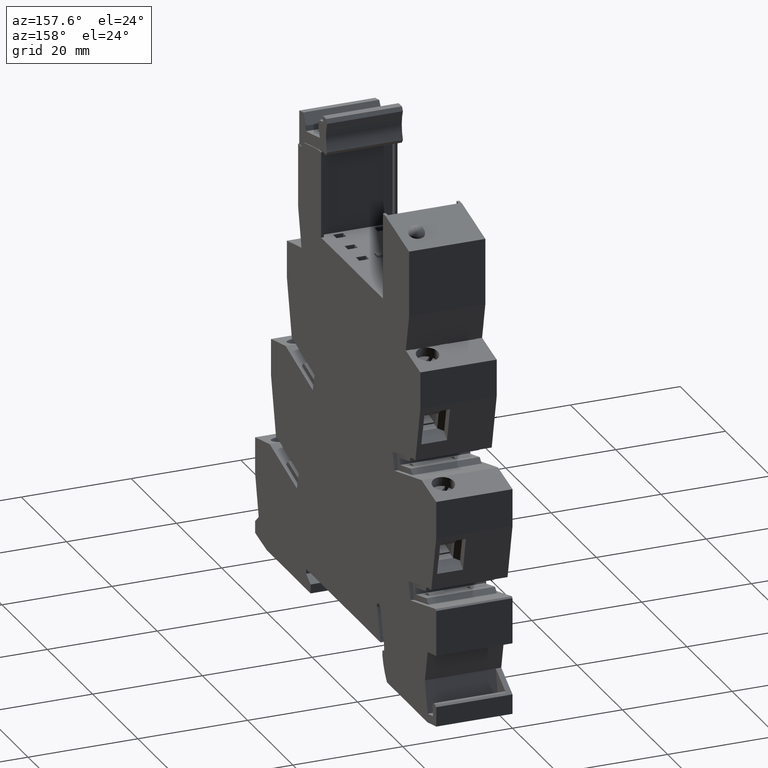
[diagram: clean part render]
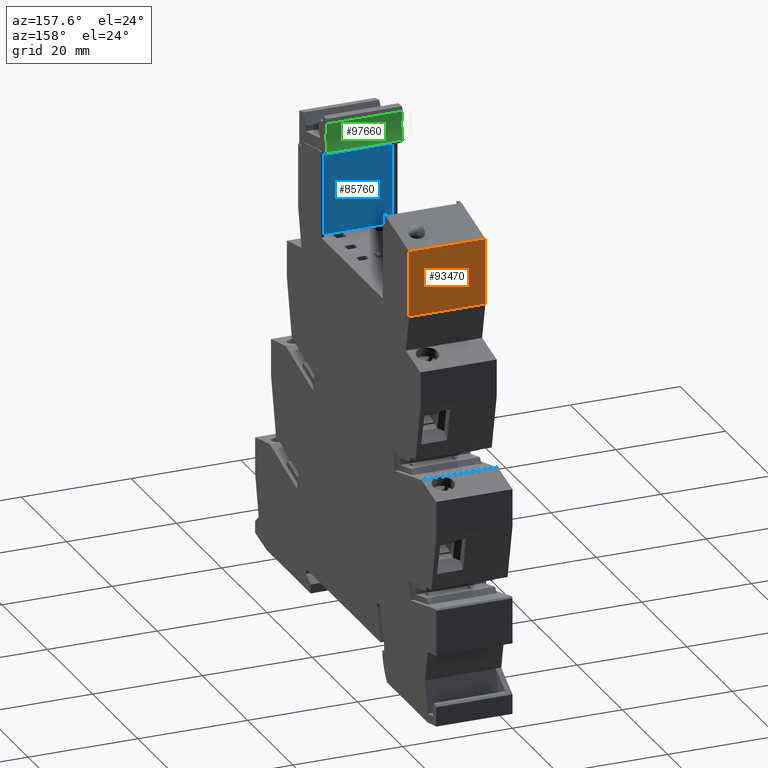
[diagram: same view with three faces highlighted in distinct colors, each labeled with its STEP entity id]
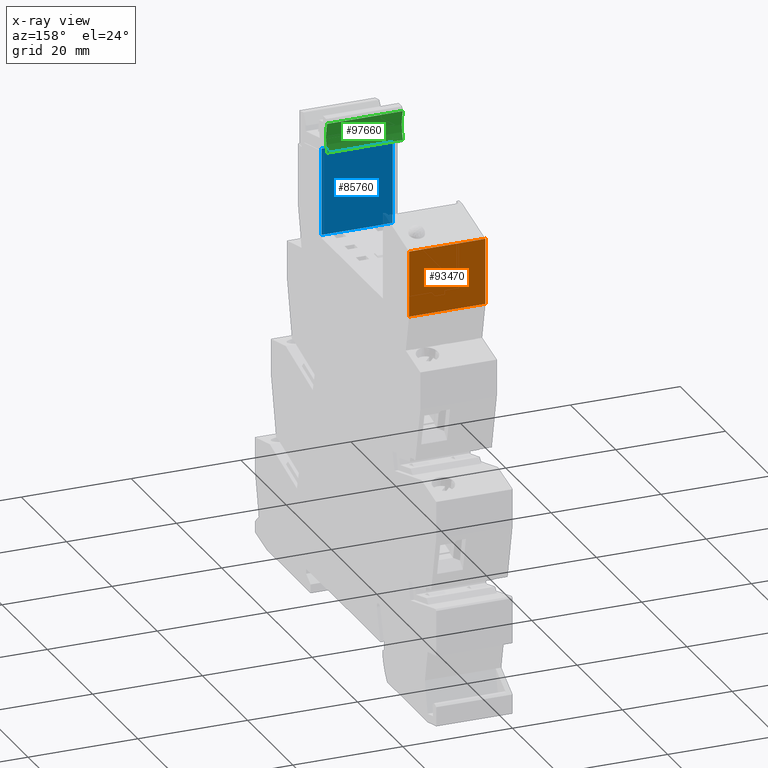
[diagram: x-ray of the same camera — body ghosted, the three highlighted faces saturated]
A machine part, auxiliary view with three faces highlighted in distinct colors.
The next image is the same camera in x-ray (body ghosted, the three faces saturated) — at least one of them is partly hidden behind the body in this view.
Their STEP definitions:

[orange] entity #93470 — the highlighted planar face has unit normal (-0, -1, -0).
#2520=CARTESIAN_POINT('',(-26.6928399999995,74.3999999671675,
-14.7000000000029));
#2530=VERTEX_POINT('',#2520);
#2560=CARTESIAN_POINT('',(-26.6928400000009,51.1058216480324,
-14.7000000000029));
#2570=DIRECTION('',(-6.25650887987416E-14,-1.,3.81404366214674E-28));
#2580=VECTOR('',#2570,1.);
#2590=LINE('',#2560,#2580);
#2600=CARTESIAN_POINT('',(-26.6928400000003,62.4210975206028,
-14.7000000000046));
#2610=VERTEX_POINT('',#2600);
#2620=EDGE_CURVE('',#2530,#2610,#2590,.T.);
#11440=CARTESIAN_POINT('',(-26.6928400000011,62.4210975206027,
-0.800000000002909));
#11450=VERTEX_POINT('',#11440);
#11480=CARTESIAN_POINT('',(-26.6928400000018,51.1058216480324,
-0.800000000002909));
#11490=DIRECTION('',(-6.25650887987416E-14,-1.,3.81404366214674E-28));
#11500=VECTOR('',#11490,1.);
#11510=LINE('',#11480,#11500);
#11520=CARTESIAN_POINT('',(-26.6928400000004,74.3999999671675,
-0.800000000002909));
#11530=VERTEX_POINT('',#11520);
#11540=EDGE_CURVE('',#11530,#11450,#11510,.T.);
#66400=CARTESIAN_POINT('',(-26.6928400000011,62.4210975206027,
-0.800000000002907));
#66410=DIRECTION('',(1.83015730011275E-26,2.95423459168867E-13,-1.));
#66420=VECTOR('',#66410,1.);
#66430=LINE('',#66400,#66420);
#66440=EDGE_CURVE('',#11450,#2610,#66430,.T.);
#93310=CARTESIAN_POINT('',(-26.6928399999995,74.3999999671675,
-14.7000000000051));
#93320=DIRECTION('',(1.,-6.25650887987416E-14,6.27941947176454E-14));
#93330=DIRECTION('',(6.25650887987416E-14,1.,-1.79455974478095E-28));
#93340=AXIS2_PLACEMENT_3D('',#93310,#93320,#93330);
#93350=PLANE('',#93340);
#93360=ORIENTED_EDGE('',*,*,#2620,.T.);
#93370=CARTESIAN_POINT('',(-26.6928400000004,74.3999999671675,
-0.800000000002907));
#93380=DIRECTION('',(6.27941947176463E-14,1.3954265492802E-14,-1.));
#93390=VECTOR('',#93380,1.);
#93400=LINE('',#93370,#93390);
#93410=EDGE_CURVE('',#11530,#2530,#93400,.T.);
#93420=ORIENTED_EDGE('',*,*,#93410,.T.);
#93430=ORIENTED_EDGE('',*,*,#11540,.F.);
#93440=ORIENTED_EDGE('',*,*,#66440,.F.);
#93450=EDGE_LOOP('',(#93440,#93430,#93420,#93360));
#93460=FACE_OUTER_BOUND('',#93450,.T.);
#93470=ADVANCED_FACE('',(#93460),#93350,.F.);

[blue] entity #85760 — the highlighted planar face has unit normal (0, -1, 0).
#72100=CARTESIAN_POINT('',(13.1571600000003,60.9999999789284,
-14.200000000007));
#72110=VERTEX_POINT('',#72100);
#72140=CARTESIAN_POINT('',(13.1571600000003,60.9999999789284,
-13.800000000007));
#72150=DIRECTION('',(5.99642204871645E-15,-8.82503143234995E-30,1.));
#72160=VECTOR('',#72150,1.);
#72170=LINE('',#72140,#72160);
#72180=CARTESIAN_POINT('',(13.1571600056445,60.9999999789284,
-1.30000000000503));
#72190=VERTEX_POINT('',#72180);
#72200=EDGE_CURVE('',#72110,#72190,#72170,.T.);
#85460=CARTESIAN_POINT('',(13.1571600000003,60.9999999789284,
-14.200000000007));
#85470=DIRECTION('',(1.,6.05765437811046E-15,-5.99642204871645E-15));
#85480=DIRECTION('',(5.99642204871645E-15,-8.82503143234995E-30,1.));
#85490=AXIS2_PLACEMENT_3D('',#85460,#85470,#85480);
#85500=PLANE('',#85490);
#85510=ORIENTED_EDGE('',*,*,#72200,.T.);
#85520=CARTESIAN_POINT('',(13.1571600000007,7.105427357601E-15,
-14.2000000000071));
#85530=DIRECTION('',(-6.05765437811046E-15,1.,4.53595020502082E-29));
#85540=VECTOR('',#85530,1.);
#85550=LINE('',#85520,#85540);
#85560=CARTESIAN_POINT('',(13.1571600000002,76.9000000000087,
-14.2000000000071));
#85570=VERTEX_POINT('',#85560);
#85580=EDGE_CURVE('',#72110,#85570,#85550,.T.);
#85590=ORIENTED_EDGE('',*,*,#85580,.F.);
#85600=CARTESIAN_POINT('',(13.1571600000003,76.89999999999,
1.77635683940025E-15));
#85610=DIRECTION('',(5.99642204872442E-15,-1.31743292778328E-12,1.));
#85620=VECTOR('',#85610,1.);
#85630=LINE('',#85600,#85620);
#85640=CARTESIAN_POINT('',(13.1571600000003,76.8999999999917,
-1.30000000000503));
#85650=VERTEX_POINT('',#85640);
#85660=EDGE_CURVE('',#85570,#85650,#85630,.T.);
#85670=ORIENTED_EDGE('',*,*,#85660,.F.);
#85680=CARTESIAN_POINT('',(13.1571600000008,7.105427357601E-15,
-1.30000000000503));
#85690=DIRECTION('',(-6.05765437811046E-15,1.,4.53595020502082E-29));
#85700=VECTOR('',#85690,1.);
#85710=LINE('',#85680,#85700);
#85720=EDGE_CURVE('',#72190,#85650,#85710,.T.);
#85730=ORIENTED_EDGE('',*,*,#85720,.T.);
#85740=EDGE_LOOP('',(#85730,#85670,#85590,#85510));
#85750=FACE_OUTER_BOUND('',#85740,.T.);
#85760=ADVANCED_FACE('',(#85750),#85500,.F.);

[green] entity #97660 — the highlighted cylindrical surface (partial cylindrical patch) has radius 7 mm, axis along (-1, 0, -0).
#82190=CARTESIAN_POINT('',(9.87494968319699,82.8749667940425,
-0.74999999854331));
#82200=VERTEX_POINT('',#82190);
#82230=CARTESIAN_POINT('',(9.87494968332252,82.8749667940607,
-14.5499999985433));
#82240=DIRECTION('',(-9.0965102661587E-12,-1.3174329277823E-12,1.));
#82250=VECTOR('',#82240,1.);
#82260=LINE('',#82230,#82250);
#82270=CARTESIAN_POINT('',(9.87494968332252,82.8749667940607,
-14.5499999985433));
#82280=VERTEX_POINT('',#82270);
#82290=EDGE_CURVE('',#82280,#82200,#82260,.T.);
#95790=CARTESIAN_POINT('',(3.38576257474846,80.2500000000007,
-14.5499999986058));
#95800=DIRECTION('',(-9.0965102661587E-12,-1.3174329277823E-12,1.));
#95810=DIRECTION('',(1.,-6.29277373059031E-14,9.09651026615862E-12));
#95820=AXIS2_PLACEMENT_3D('',#95790,#95800,#95810);
#95830=CIRCLE('',#95820,7.00000000000011);
#95840=CARTESIAN_POINT('',(9.85798622406006,77.5834814770398,
-14.5499999985504));
#95850=VERTEX_POINT('',#95840);
#95860=EDGE_CURVE('',#95850,#82280,#95830,.T.);
#96920=CARTESIAN_POINT('',(9.85798622393452,77.5834814770217,
-0.749999998550436));
#96930=VERTEX_POINT('',#96920);
#96960=CARTESIAN_POINT('',(3.38576257462293,80.2499999999825,
-0.749999998605798));
#96970=DIRECTION('',(-9.0965102661587E-12,-1.3174329277823E-12,1.));
#96980=DIRECTION('',(1.,-6.29277373059031E-14,9.09651026615862E-12));
#96990=AXIS2_PLACEMENT_3D('',#96960,#96970,#96980);
#97000=CIRCLE('',#96990,7.00000000000011);
#97010=EDGE_CURVE('',#96930,#82200,#97000,.T.);
#97500=CARTESIAN_POINT('',(3.38576257474846,80.2500000000007,
-14.5499999986058));
#97510=DIRECTION('',(-9.0965102661587E-12,-1.3174329277823E-12,1.));
#97520=DIRECTION('',(1.,-6.29277373059031E-14,9.09651026615862E-12));
#97530=AXIS2_PLACEMENT_3D('',#97500,#97510,#97520);
#97540=CYLINDRICAL_SURFACE('',#97530,7.00000000000011);
#97550=ORIENTED_EDGE('',*,*,#95860,.F.);
#97560=ORIENTED_EDGE('',*,*,#82290,.F.);
#97570=ORIENTED_EDGE('',*,*,#97010,.T.);
#97580=CARTESIAN_POINT('',(9.85798622406006,77.5834814770398,
-14.5499999985504));
#97590=DIRECTION('',(-9.0965102661587E-12,-1.3174329277823E-12,1.));
#97600=VECTOR('',#97590,1.);
#97610=LINE('',#97580,#97600);
#97620=EDGE_CURVE('',#95850,#96930,#97610,.T.);
#97630=ORIENTED_EDGE('',*,*,#97620,.T.);
#97640=EDGE_LOOP('',(#97630,#97570,#97560,#97550));
#97650=FACE_OUTER_BOUND('',#97640,.T.);
#97660=ADVANCED_FACE('',(#97650),#97540,.F.);